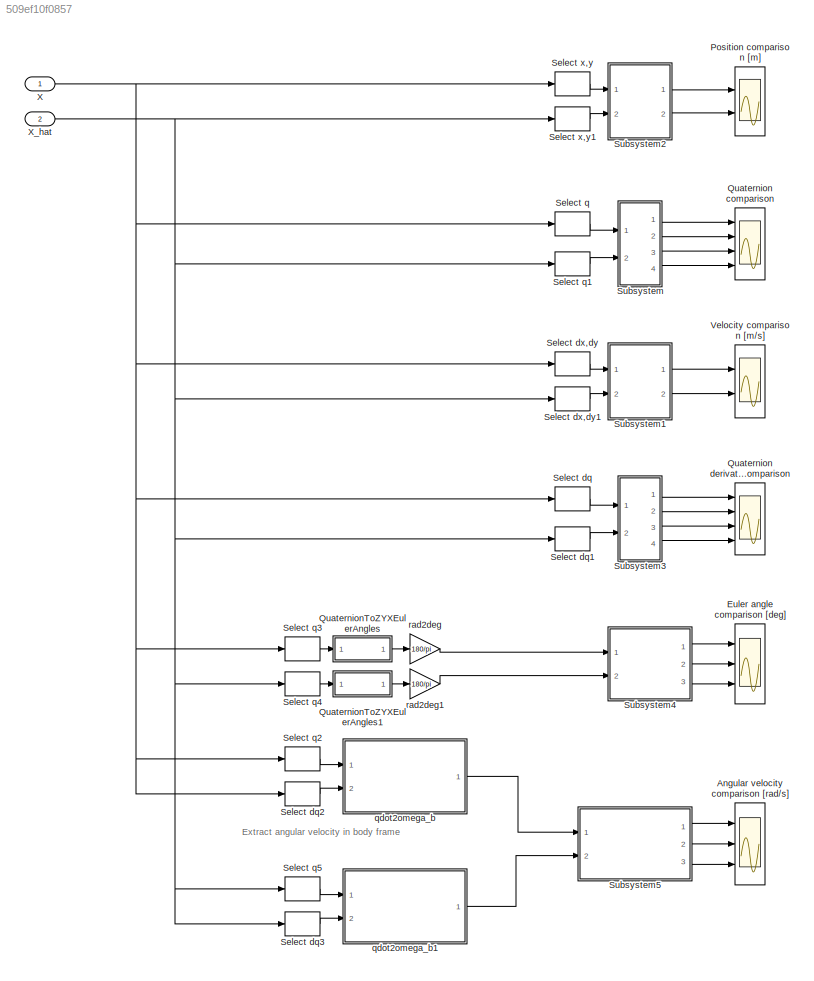
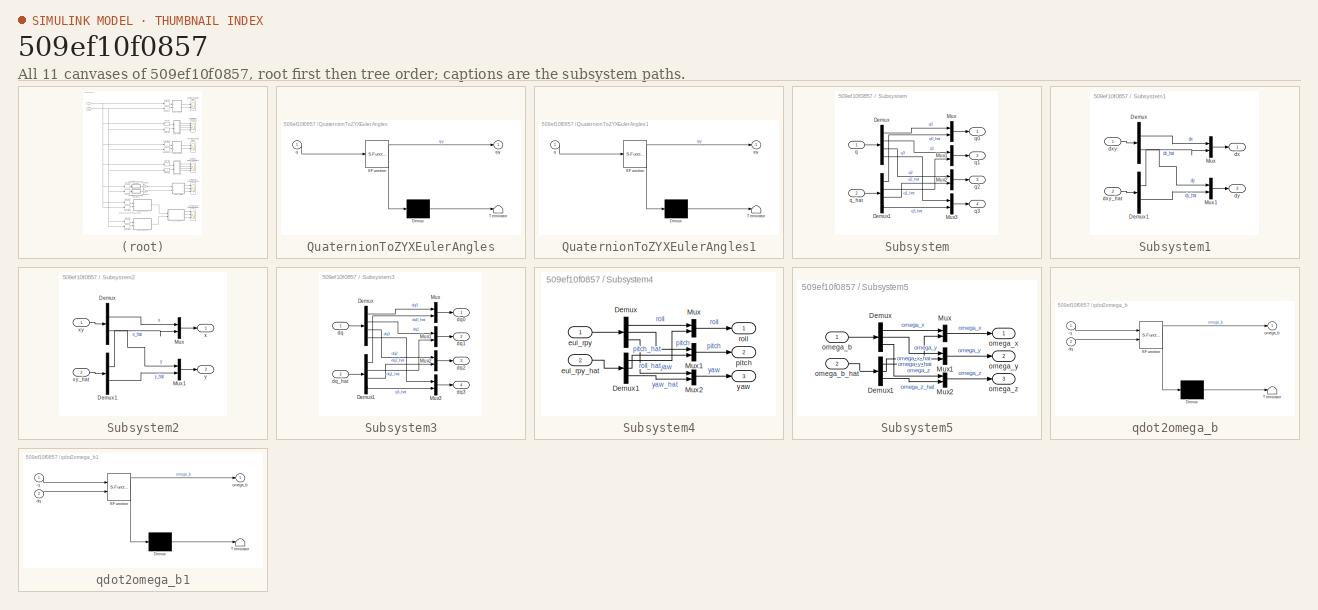
[diagram: thumbnail index - all 11 canvases of the model, root first then tree order]
MODEL slx_509ef10f0857
KIND model
CONFIG AbsTol = auto
CONFIG EnableMultiTasking = off
CONFIG FixedStep = auto
CONFIG MaxStep = auto
CONFIG MinStep = auto
CONFIG PreLoadFcn = modelDir = fileparts(get_param(bdroot, 'FileName'));\naddpath(fullfile(modelDir,'../../Misc'));
CONFIG RelTol = 1e-3
CONFIG SampleTimeConstraint = Unconstrained
CONFIG Solver = VariableStepAuto
CONFIG SolverName = VariableStepAuto
CONFIG StartTime = 0.0
CONFIG StopTime = 10.0
BLOCK [Scope] Angular velocity comparison [rad//s]
  Floating = off
  NumInputPorts = 3
  Ports = [3]
  ScopeSpecificationString = Simulink.scopes.TimeScopeBlockCfg('CurrentConfiguration', extmgr.ConfigurationSet(extmgr.Configuration('Core','General UI',true),extmgr.Configuration('Core','Source UI',true),extmgr.Configuration('Sources','WiredSimulink',true,'DataLoggingVariableName','ScopeData4'),extmgr.Configuration('Visuals','Time Domain',true,'SerializedDisplays',{struct('MinYLimReal','-0.62555','MaxYLimReal','0.11339','YLab...<+3058ch>
BLOCK [Scope] Euler angle comparison [deg]
  Floating = off
  NumInputPorts = 3
  Ports = [3]
  ScopeSpecificationString = Simulink.scopes.TimeScopeBlockCfg('CurrentConfiguration', extmgr.ConfigurationSet(extmgr.Configuration('Core','General UI',true),extmgr.Configuration('Core','Source UI',true),extmgr.Configuration('Sources','WiredSimulink',true,'DataLoggingVariableName','ScopeData5'),extmgr.Configuration('Visuals','Time Domain',true,'SerializedDisplays',{struct('MinYLimReal','-1.27689','MaxYLimReal','11.25299','YLa...<+2976ch>
BLOCK [Scope] Position comparison [m]
  Floating = off
  NumInputPorts = 2
  Ports = [2]
  ScopeSpecificationString = Simulink.scopes.TimeScopeBlockCfg('CurrentConfiguration', extmgr.ConfigurationSet(extmgr.Configuration('Core','General UI',true),extmgr.Configuration('Core','Source UI',true),extmgr.Configuration('Sources','WiredSimulink',true,'DataLoggingVariableName','ScopeData2'),extmgr.Configuration('Visuals','Time Domain',true,'SerializedDisplays',{struct('MinYLimReal','-0.42752','MaxYLimReal','3.72019','YLab...<+2202ch>
BLOCK [Scope] Quaternion comparison
  Floating = off
  NumInputPorts = 4
  Ports = [4]
  ScopeSpecificationString = Simulink.scopes.TimeScopeBlockCfg('CurrentConfiguration', extmgr.ConfigurationSet(extmgr.Configuration('Core','General UI',true),extmgr.Configuration('Core','Source UI',true),extmgr.Configuration('Sources','WiredSimulink',true),extmgr.Configuration('Visuals','Time Domain',true,'SerializedDisplays',{struct('MinYLimReal','0.94837','MaxYLimReal','1.00574','YLabelReal','','MinYLimMag','0.94837','MaxYL...<+3691ch>
BLOCK [Scope] Quaternion derivative comparison
  Floating = off
  NumInputPorts = 4
  Ports = [4]
  ScopeSpecificationString = Simulink.scopes.TimeScopeBlockCfg('CurrentConfiguration', extmgr.ConfigurationSet(extmgr.Configuration('Core','General UI',true),extmgr.Configuration('Core','Source UI',true),extmgr.Configuration('Sources','WiredSimulink',true,'DataLoggingVariableName','ScopeData3'),extmgr.Configuration('Visuals','Time Domain',true,'SerializedDisplays',{struct('MinYLimReal','-0.46183','MaxYLimReal','0.33924','YLab...<+3747ch>
BLOCK [SubSystem] QuaternionToZYXEulerAngles
  ErrorFcn = Stateflow.Translate.translate
  PermitHierarchicalResolution = ExplicitOnly
  Ports = [1, 1]
  RequestExecContextInheritance = off
  SFBlockType = MATLAB Function
  TreatAsAtomicUnit = on
BLOCK [Demux] QuaternionToZYXEulerAngles/ Demux 
  Outputs = 1
  Ports = [1, 1]
BLOCK [S-Function] QuaternionToZYXEulerAngles/ SFunction 
  EnableBusSupport = on
  FunctionName = sf_sfun
  PortCounts = [1 2]
  Ports = [1, 2]
  SFcnIsStateOwnerBlock = off
  SFunctionDeploymentMode = off
  Tag = Stateflow S-Function StatesComparison 1
BLOCK [Terminator] QuaternionToZYXEulerAngles/ Terminator 
BLOCK [Inport] QuaternionToZYXEulerAngles/q
  IconDisplay = Port number
BLOCK [Outport] QuaternionToZYXEulerAngles/rpy
  IconDisplay = Port number
BLOCK [SubSystem] QuaternionToZYXEulerAngles1
  ErrorFcn = Stateflow.Translate.translate
  PermitHierarchicalResolution = ExplicitOnly
  Ports = [1, 1]
  RequestExecContextInheritance = off
  SFBlockType = MATLAB Function
  TreatAsAtomicUnit = on
BLOCK [Demux] QuaternionToZYXEulerAngles1/ Demux 
  Outputs = 1
  Ports = [1, 1]
BLOCK [S-Function] QuaternionToZYXEulerAngles1/ SFunction 
  EnableBusSupport = on
  FunctionName = sf_sfun
  PortCounts = [1 2]
  Ports = [1, 2]
  SFcnIsStateOwnerBlock = off
  SFunctionDeploymentMode = off
  Tag = Stateflow S-Function StatesComparison 2
BLOCK [Terminator] QuaternionToZYXEulerAngles1/ Terminator 
BLOCK [Inport] QuaternionToZYXEulerAngles1/q
  IconDisplay = Port number
BLOCK [Outport] QuaternionToZYXEulerAngles1/rpy
  IconDisplay = Port number
BLOCK [Selector] Select dq
  IndexOptions = Index vector (dialog)
  Indices = [9,10,11,12]
  InputPortWidth = 12
  OutputSizes = 1
  Ports = [1, 1]
BLOCK [Selector] Select dq1
  IndexOptions = Index vector (dialog)
  Indices = [9,10,11,12]
  InputPortWidth = 12
  OutputSizes = 1
  Ports = [1, 1]
BLOCK [Selector] Select dq2
  IndexOptions = Index vector (dialog)
  Indices = [9,10,11,12]
  InputPortWidth = 12
  OutputSizes = 1
  Ports = [1, 1]
BLOCK [Selector] Select dq3
  IndexOptions = Index vector (dialog)
  Indices = [9,10,11,12]
  InputPortWidth = 12
  OutputSizes = 1
  Ports = [1, 1]
BLOCK [Selector] Select dx,dy
  IndexOptions = Index vector (dialog)
  Indices = [7,8]
  InputPortWidth = 12
  OutputSizes = 1
  Ports = [1, 1]
BLOCK [Selector] Select dx,dy1
  IndexOptions = Index vector (dialog)
  Indices = [7,8]
  InputPortWidth = 12
  OutputSizes = 1
  Ports = [1, 1]
BLOCK [Selector] Select q
  IndexOptions = Index vector (dialog)
  Indices = [3,4,5,6]
  InputPortWidth = 12
  OutputSizes = 1
  Ports = [1, 1]
BLOCK [Selector] Select q1
  IndexOptions = Index vector (dialog)
  Indices = [3,4,5,6]
  InputPortWidth = 12
  OutputSizes = 1
  Ports = [1, 1]
BLOCK [Selector] Select q2
  IndexOptions = Index vector (dialog)
  Indices = [3,4,5,6]
  InputPortWidth = 12
  OutputSizes = 1
  Ports = [1, 1]
BLOCK [Selector] Select q3
  IndexOptions = Index vector (dialog)
  Indices = [3,4,5,6]
  InputPortWidth = 12
  OutputSizes = 1
  Ports = [1, 1]
BLOCK [Selector] Select q4
  IndexOptions = Index vector (dialog)
  Indices = [3,4,5,6]
  InputPortWidth = 12
  OutputSizes = 1
  Ports = [1, 1]
BLOCK [Selector] Select q5
  IndexOptions = Index vector (dialog)
  Indices = [3,4,5,6]
  InputPortWidth = 12
  OutputSizes = 1
  Ports = [1, 1]
BLOCK [Selector] Select x,y
  IndexOptions = Index vector (dialog)
  Indices = [1,2]
  InputPortWidth = 12
  OutputSizes = 1
  Ports = [1, 1]
BLOCK [Selector] Select x,y1
  IndexOptions = Index vector (dialog)
  Indices = [1,2]
  InputPortWidth = 12
  OutputSizes = 1
  Ports = [1, 1]
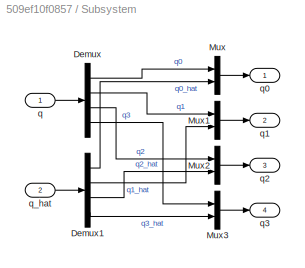
BLOCK [SubSystem] Subsystem
  Ports = [2, 4]
  RequestExecContextInheritance = off
BLOCK [Demux] Subsystem/Demux
  DisplayOption = bar
  Ports = [1, 4]
BLOCK [Demux] Subsystem/Demux1
  DisplayOption = bar
  Ports = [1, 4]
BLOCK [Mux] Subsystem/Mux
  DisplayOption = bar
  Inputs = 2
  Ports = [2, 1]
BLOCK [Mux] Subsystem/Mux1
  DisplayOption = bar
  Inputs = 2
  Ports = [2, 1]
BLOCK [Mux] Subsystem/Mux2
  DisplayOption = bar
  Inputs = 2
  Ports = [2, 1]
BLOCK [Mux] Subsystem/Mux3
  DisplayOption = bar
  Inputs = 2
  Ports = [2, 1]
BLOCK [Inport] Subsystem/q
  IconDisplay = Port number
BLOCK [Outport] Subsystem/q0
  IconDisplay = Port number
BLOCK [Outport] Subsystem/q1
  IconDisplay = Port number
  Port = 2
BLOCK [Outport] Subsystem/q2
  IconDisplay = Port number
  Port = 3
BLOCK [Outport] Subsystem/q3
  IconDisplay = Port number
  Port = 4
BLOCK [Inport] Subsystem/q_hat
  IconDisplay = Port number
  Port = 2
BLOCK [SubSystem] Subsystem1
  Ports = [2, 2]
  RequestExecContextInheritance = off
BLOCK [Demux] Subsystem1/Demux
  DisplayOption = bar
  Outputs = 2
  Ports = [1, 2]
BLOCK [Demux] Subsystem1/Demux1
  DisplayOption = bar
  Outputs = 2
  Ports = [1, 2]
BLOCK [Mux] Subsystem1/Mux
  DisplayOption = bar
  Inputs = 2
  Ports = [2, 1]
BLOCK [Mux] Subsystem1/Mux1
  DisplayOption = bar
  Inputs = 2
  Ports = [2, 1]
BLOCK [Outport] Subsystem1/dx
  IconDisplay = Port number
BLOCK [Inport] Subsystem1/dxy
  IconDisplay = Port number
BLOCK [Inport] Subsystem1/dxy_hat
  IconDisplay = Port number
  Port = 2
BLOCK [Outport] Subsystem1/dy
  IconDisplay = Port number
  Port = 2
BLOCK [SubSystem] Subsystem2
  Ports = [2, 2]
  RequestExecContextInheritance = off
BLOCK [Demux] Subsystem2/Demux
  DisplayOption = bar
  Outputs = 2
  Ports = [1, 2]
BLOCK [Demux] Subsystem2/Demux1
  DisplayOption = bar
  Outputs = 2
  Ports = [1, 2]
BLOCK [Mux] Subsystem2/Mux
  DisplayOption = bar
  Inputs = 2
  Ports = [2, 1]
BLOCK [Mux] Subsystem2/Mux1
  DisplayOption = bar
  Inputs = 2
  Ports = [2, 1]
BLOCK [Outport] Subsystem2/x
  IconDisplay = Port number
BLOCK [Inport] Subsystem2/xy
  IconDisplay = Port number
BLOCK [Inport] Subsystem2/xy_hat
  IconDisplay = Port number
  Port = 2
BLOCK [Outport] Subsystem2/y
  IconDisplay = Port number
  Port = 2
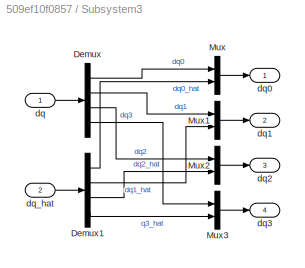
BLOCK [SubSystem] Subsystem3
  Ports = [2, 4]
  RequestExecContextInheritance = off
BLOCK [Demux] Subsystem3/Demux
  DisplayOption = bar
  Ports = [1, 4]
BLOCK [Demux] Subsystem3/Demux1
  DisplayOption = bar
  Ports = [1, 4]
BLOCK [Mux] Subsystem3/Mux
  DisplayOption = bar
  Inputs = 2
  Ports = [2, 1]
BLOCK [Mux] Subsystem3/Mux1
  DisplayOption = bar
  Inputs = 2
  Ports = [2, 1]
BLOCK [Mux] Subsystem3/Mux2
  DisplayOption = bar
  Inputs = 2
  Ports = [2, 1]
BLOCK [Mux] Subsystem3/Mux3
  DisplayOption = bar
  Inputs = 2
  Ports = [2, 1]
BLOCK [Inport] Subsystem3/dq
  IconDisplay = Port number
BLOCK [Outport] Subsystem3/dq0
  IconDisplay = Port number
BLOCK [Outport] Subsystem3/dq1
  IconDisplay = Port number
  Port = 2
BLOCK [Outport] Subsystem3/dq2
  IconDisplay = Port number
  Port = 3
BLOCK [Outport] Subsystem3/dq3
  IconDisplay = Port number
  Port = 4
BLOCK [Inport] Subsystem3/dq_hat
  IconDisplay = Port number
  Port = 2
BLOCK [SubSystem] Subsystem4
  Ports = [2, 3]
  RequestExecContextInheritance = off
BLOCK [Demux] Subsystem4/Demux
  DisplayOption = bar
  Outputs = 3
  Ports = [1, 3]
BLOCK [Demux] Subsystem4/Demux1
  DisplayOption = bar
  Outputs = 3
  Ports = [1, 3]
BLOCK [Mux] Subsystem4/Mux
  DisplayOption = bar
  Inputs = 2
  Ports = [2, 1]
BLOCK [Mux] Subsystem4/Mux1
  DisplayOption = bar
  Inputs = 2
  Ports = [2, 1]
BLOCK [Mux] Subsystem4/Mux2
  DisplayOption = bar
  Inputs = 2
  Ports = [2, 1]
BLOCK [Inport] Subsystem4/eul_rpy
  IconDisplay = Port number
BLOCK [Inport] Subsystem4/eul_rpy_hat
  IconDisplay = Port number
  Port = 2
BLOCK [Outport] Subsystem4/pitch
  IconDisplay = Port number
  Port = 2
BLOCK [Outport] Subsystem4/roll
  IconDisplay = Port number
BLOCK [Outport] Subsystem4/yaw
  IconDisplay = Port number
  Port = 3
BLOCK [SubSystem] Subsystem5
  Ports = [2, 3]
  RequestExecContextInheritance = off
BLOCK [Demux] Subsystem5/Demux
  DisplayOption = bar
  Outputs = 3
  Ports = [1, 3]
BLOCK [Demux] Subsystem5/Demux1
  DisplayOption = bar
  Outputs = 3
  Ports = [1, 3]
BLOCK [Mux] Subsystem5/Mux
  DisplayOption = bar
  Inputs = 2
  Ports = [2, 1]
BLOCK [Mux] Subsystem5/Mux1
  DisplayOption = bar
  Inputs = 2
  Ports = [2, 1]
BLOCK [Mux] Subsystem5/Mux2
  DisplayOption = bar
  Inputs = 2
  Ports = [2, 1]
BLOCK [Inport] Subsystem5/omega_b
  IconDisplay = Port number
BLOCK [Inport] Subsystem5/omega_b_hat
  IconDisplay = Port number
  Port = 2
BLOCK [Outport] Subsystem5/omega_x
  IconDisplay = Port number
BLOCK [Outport] Subsystem5/omega_y
  IconDisplay = Port number
  Port = 2
BLOCK [Outport] Subsystem5/omega_z
  IconDisplay = Port number
  Port = 3
BLOCK [Scope] Velocity comparison [m//s]
  Floating = off
  NumInputPorts = 2
  Ports = [2]
  ScopeSpecificationString = Simulink.scopes.TimeScopeBlockCfg('CurrentConfiguration', extmgr.ConfigurationSet(extmgr.Configuration('Core','General UI',true),extmgr.Configuration('Core','Source UI',true),extmgr.Configuration('Sources','WiredSimulink',true,'DataLoggingVariableName','ScopeData1'),extmgr.Configuration('Visuals','Time Domain',true,'SerializedDisplays',{struct('MinYLimReal','-0.47699','MaxYLimReal','0.89514','YLab...<+2145ch>
BLOCK [Inport] X
  IconDisplay = Port number
BLOCK [Inport] X_hat
  IconDisplay = Port number
  Port = 2
BLOCK [SubSystem] qdot2omega_b
  ErrorFcn = Stateflow.Translate.translate
  PermitHierarchicalResolution = ExplicitOnly
  Ports = [2, 1]
  RequestExecContextInheritance = off
  SFBlockType = MATLAB Function
  TreatAsAtomicUnit = on
BLOCK [Demux] qdot2omega_b/ Demux 
  Outputs = 1
  Ports = [1, 1]
BLOCK [S-Function] qdot2omega_b/ SFunction 
  EnableBusSupport = on
  FunctionName = sf_sfun
  PortCounts = [2 2]
  Ports = [2, 2]
  SFcnIsStateOwnerBlock = off
  SFunctionDeploymentMode = off
  Tag = Stateflow S-Function StatesComparison 3
BLOCK [Terminator] qdot2omega_b/ Terminator 
BLOCK [Inport] qdot2omega_b/dq
  IconDisplay = Port number
  Port = 2
BLOCK [Outport] qdot2omega_b/omega_b
  IconDisplay = Port number
BLOCK [Inport] qdot2omega_b/q
  IconDisplay = Port number
BLOCK [SubSystem] qdot2omega_b1
  ErrorFcn = Stateflow.Translate.translate
  PermitHierarchicalResolution = ExplicitOnly
  Ports = [2, 1]
  RequestExecContextInheritance = off
  SFBlockType = MATLAB Function
  TreatAsAtomicUnit = on
BLOCK [Demux] qdot2omega_b1/ Demux 
  Outputs = 1
  Ports = [1, 1]
BLOCK [S-Function] qdot2omega_b1/ SFunction 
  EnableBusSupport = on
  FunctionName = sf_sfun
  PortCounts = [2 2]
  Ports = [2, 2]
  SFcnIsStateOwnerBlock = off
  SFunctionDeploymentMode = off
  Tag = Stateflow S-Function StatesComparison 4
BLOCK [Terminator] qdot2omega_b1/ Terminator 
BLOCK [Inport] qdot2omega_b1/dq
  IconDisplay = Port number
  Port = 2
BLOCK [Outport] qdot2omega_b1/omega_b
  IconDisplay = Port number
BLOCK [Inport] qdot2omega_b1/q
  IconDisplay = Port number
BLOCK [Gain] rad2deg
  Gain = 180/pi
  OutDataTypeStr = Inherit: Inherit via internal rule
  ParamDataTypeStr = Inherit: Inherit via internal rule
  SaturateOnIntegerOverflow = off
BLOCK [Gain] rad2deg1
  Gain = 180/pi
  OutDataTypeStr = Inherit: Inherit via internal rule
  ParamDataTypeStr = Inherit: Inherit via internal rule
  SaturateOnIntegerOverflow = off
ANNOTATION (root): Extract angular velocity in body frame
LINE QuaternionToZYXEulerAngles1:1 -> rad2deg1:1
LINE QuaternionToZYXEulerAngles:1 -> rad2deg:1
LINE Select dq1:1 -> Subsystem3:2
LINE Select dq2:1 -> qdot2omega_b:2
LINE Select dq3:1 -> qdot2omega_b1:2
LINE Select dq:1 -> Subsystem3:1
LINE Select dx,dy1:1 -> Subsystem1:2
LINE Select dx,dy:1 -> Subsystem1:1
LINE Select q1:1 -> Subsystem:2
LINE Select q2:1 -> qdot2omega_b:1
LINE Select q3:1 -> QuaternionToZYXEulerAngles:1
LINE Select q4:1 -> QuaternionToZYXEulerAngles1:1
LINE Select q5:1 -> qdot2omega_b1:1
LINE Select q:1 -> Subsystem:1
LINE Select x,y1:1 -> Subsystem2:2
LINE Select x,y:1 -> Subsystem2:1
LINE Subsystem/Demux1:1 -> Subsystem/Mux:2
LINE Subsystem/Demux1:2 -> Subsystem/Mux1:2
LINE Subsystem/Demux1:3 -> Subsystem/Mux2:2
LINE Subsystem/Demux1:4 -> Subsystem/Mux3:2
LINE Subsystem/Demux:1 -> Subsystem/Mux:1
LINE Subsystem/Demux:2 -> Subsystem/Mux1:1
LINE Subsystem/Demux:3 -> Subsystem/Mux2:1
LINE Subsystem/Demux:4 -> Subsystem/Mux3:1
LINE Subsystem/Mux1:1 -> Subsystem/q1:1
LINE Subsystem/Mux2:1 -> Subsystem/q2:1
LINE Subsystem/Mux3:1 -> Subsystem/q3:1
LINE Subsystem/Mux:1 -> Subsystem/q0:1
LINE Subsystem/q:1 -> Subsystem/Demux:1
LINE Subsystem/q_hat:1 -> Subsystem/Demux1:1
LINE Subsystem1/Demux1:1 -> Subsystem1/Mux:2
LINE Subsystem1/Demux1:2 -> Subsystem1/Mux1:2
LINE Subsystem1/Demux:1 -> Subsystem1/Mux:1
LINE Subsystem1/Demux:2 -> Subsystem1/Mux1:1
LINE Subsystem1/Mux1:1 -> Subsystem1/dy:1
LINE Subsystem1/Mux:1 -> Subsystem1/dx:1
LINE Subsystem1/dxy:1 -> Subsystem1/Demux:1
LINE Subsystem1/dxy_hat:1 -> Subsystem1/Demux1:1
LINE Subsystem1:1 -> Velocity comparison [m//s]:1
LINE Subsystem1:2 -> Velocity comparison [m//s]:2
LINE Subsystem2/Demux1:1 -> Subsystem2/Mux:2
LINE Subsystem2/Demux1:2 -> Subsystem2/Mux1:2
LINE Subsystem2/Demux:1 -> Subsystem2/Mux:1
LINE Subsystem2/Demux:2 -> Subsystem2/Mux1:1
LINE Subsystem2/Mux1:1 -> Subsystem2/y:1
LINE Subsystem2/Mux:1 -> Subsystem2/x:1
LINE Subsystem2/xy:1 -> Subsystem2/Demux:1
LINE Subsystem2/xy_hat:1 -> Subsystem2/Demux1:1
LINE Subsystem2:1 -> Position comparison [m]:1
LINE Subsystem2:2 -> Position comparison [m]:2
LINE Subsystem3/Demux1:1 -> Subsystem3/Mux:2
LINE Subsystem3/Demux1:2 -> Subsystem3/Mux1:2
LINE Subsystem3/Demux1:3 -> Subsystem3/Mux2:2
LINE Subsystem3/Demux1:4 -> Subsystem3/Mux3:2
LINE Subsystem3/Demux:1 -> Subsystem3/Mux:1
LINE Subsystem3/Demux:2 -> Subsystem3/Mux1:1
LINE Subsystem3/Demux:3 -> Subsystem3/Mux2:1
LINE Subsystem3/Demux:4 -> Subsystem3/Mux3:1
LINE Subsystem3/Mux1:1 -> Subsystem3/dq1:1
LINE Subsystem3/Mux2:1 -> Subsystem3/dq2:1
LINE Subsystem3/Mux3:1 -> Subsystem3/dq3:1
LINE Subsystem3/Mux:1 -> Subsystem3/dq0:1
LINE Subsystem3/dq:1 -> Subsystem3/Demux:1
LINE Subsystem3/dq_hat:1 -> Subsystem3/Demux1:1
LINE Subsystem3:1 -> Quaternion derivative comparison:1
LINE Subsystem3:2 -> Quaternion derivative comparison:2
LINE Subsystem3:3 -> Quaternion derivative comparison:3
LINE Subsystem3:4 -> Quaternion derivative comparison:4
LINE Subsystem4/Demux1:1 -> Subsystem4/Mux:2
LINE Subsystem4/Demux1:2 -> Subsystem4/Mux1:2
LINE Subsystem4/Demux1:3 -> Subsystem4/Mux2:2
LINE Subsystem4/Demux:1 -> Subsystem4/Mux:1
LINE Subsystem4/Demux:2 -> Subsystem4/Mux1:1
LINE Subsystem4/Demux:3 -> Subsystem4/Mux2:1
LINE Subsystem4/Mux1:1 -> Subsystem4/pitch:1
LINE Subsystem4/Mux2:1 -> Subsystem4/yaw:1
LINE Subsystem4/Mux:1 -> Subsystem4/roll:1
LINE Subsystem4/eul_rpy:1 -> Subsystem4/Demux:1
LINE Subsystem4/eul_rpy_hat:1 -> Subsystem4/Demux1:1
LINE Subsystem4:1 -> Euler angle comparison [deg]:1
LINE Subsystem4:2 -> Euler angle comparison [deg]:2
LINE Subsystem4:3 -> Euler angle comparison [deg]:3
LINE Subsystem5/Demux1:1 -> Subsystem5/Mux:2
LINE Subsystem5/Demux1:2 -> Subsystem5/Mux1:2
LINE Subsystem5/Demux1:3 -> Subsystem5/Mux2:2
LINE Subsystem5/Demux:1 -> Subsystem5/Mux:1
LINE Subsystem5/Demux:2 -> Subsystem5/Mux1:1
LINE Subsystem5/Demux:3 -> Subsystem5/Mux2:1
LINE Subsystem5/Mux1:1 -> Subsystem5/omega_y:1
LINE Subsystem5/Mux2:1 -> Subsystem5/omega_z:1
LINE Subsystem5/Mux:1 -> Subsystem5/omega_x:1
LINE Subsystem5/omega_b:1 -> Subsystem5/Demux:1
LINE Subsystem5/omega_b_hat:1 -> Subsystem5/Demux1:1
LINE Subsystem5:1 -> Angular velocity comparison [rad//s]:1
LINE Subsystem5:2 -> Angular velocity comparison [rad//s]:2
LINE Subsystem5:3 -> Angular velocity comparison [rad//s]:3
LINE Subsystem:1 -> Quaternion comparison:1
LINE Subsystem:2 -> Quaternion comparison:2
LINE Subsystem:3 -> Quaternion comparison:3
LINE Subsystem:4 -> Quaternion comparison:4
NET X:1 -> Select dq2:1, Select dq:1, Select dx,dy:1, Select q2:1, Select q3:1, Select q:1, Select x,y:1
NET X_hat:1 -> Select dq1:1, Select dq3:1, Select dx,dy1:1, Select q1:1, Select q4:1, Select q5:1, Select x,y1:1
LINE qdot2omega_b1:1 -> Subsystem5:2
LINE qdot2omega_b:1 -> Subsystem5:1
LINE rad2deg1:1 -> Subsystem4:2
LINE rad2deg:1 -> Subsystem4:1
note: NET lines group one-source signal fan-out (src -> all destinations, sorted); 1:1 wires keep LINE
CHART QuaternionToZYXEulerAngles states=1 transitions=1
  STATE_LABEL 'eML_blk_kernel()'
  STATE_LABEL 'SCRIPT:\nfunction rpy = Quaternion2ZYXEulerAngles(q)\n    rpy = Quaternion2ZYXEulerAngles(q);\nend'
CHART QuaternionToZYXEulerAngles1 states=1 transitions=1
  STATE_LABEL 'eML_blk_kernel()'
  STATE_LABEL 'SCRIPT:\nfunction rpy = Quaternion2ZYXEulerAngles(q)\n    rpy = Quaternion2ZYXEulerAngles(q);\nend'
CHART qdot2omega_b states=1 transitions=1
  STATE_LABEL 'eML_blk_kernel()'
  STATE_LABEL 'SCRIPT:\nfunction omega_b = qdot2omega_b(q, dq)\n    omega_b = qdot2omega_b(q, dq);\nend'
CHART qdot2omega_b1 states=1 transitions=1
  STATE_LABEL 'eML_blk_kernel()'
  STATE_LABEL 'SCRIPT:\nfunction omega_b = qdot2omega_b(q, dq)\n    omega_b = qdot2omega_b(q, dq);\nend'
